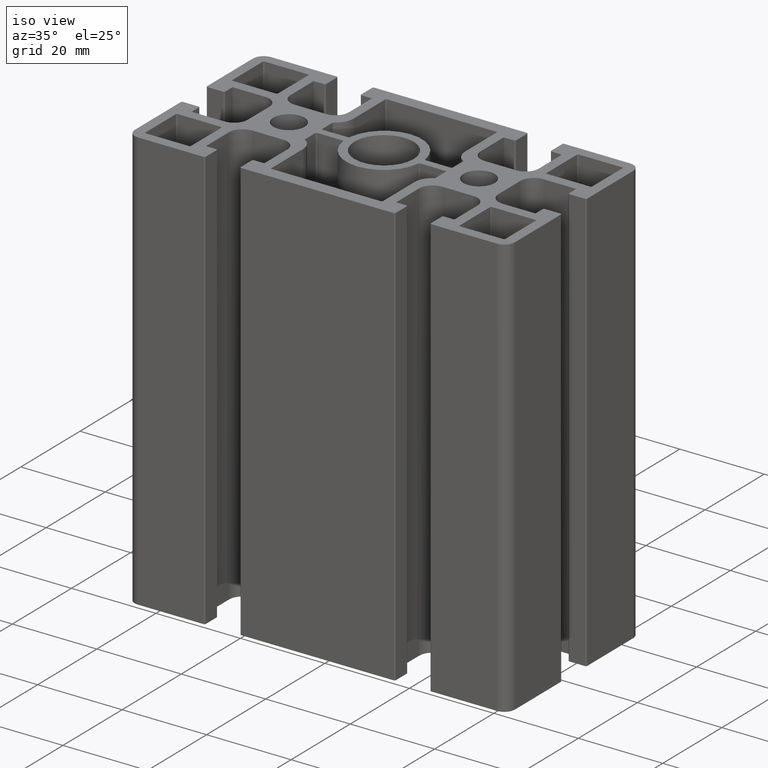
[diagram: clean part render]
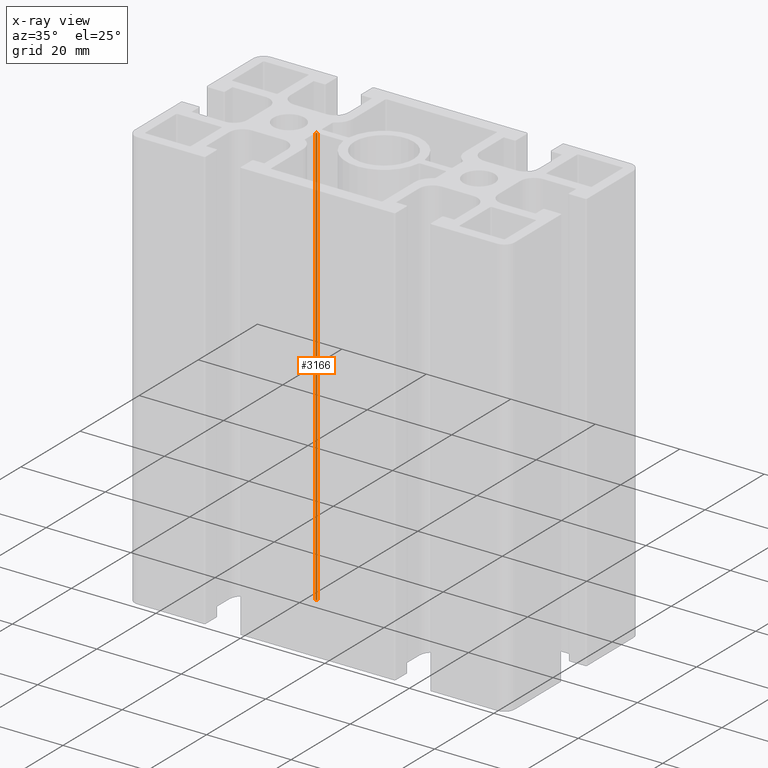
[diagram: x-ray — body ghosted, one internal face saturated and labeled with its STEP entity id]
A machine part, iso view, then the same camera in x-ray: the body is ghosted and one INTERNAL B-rep face — a face not visible from any outside direction — is saturated and labeled: STEP entity #3166.
In plain terms, the highlighted cylindrical surface (edge-blend (fillet) strip) has radius 0.3 mm, axis along (0, 0, 1).
Its self-contained STEP definition (entity closure, byte-faithful):
#140=FACE_OUTER_BOUND('',#305,.T.);
#305=EDGE_LOOP('',(#2173,#2174,#2175,#2176));
#506=LINE('',#4742,#830);
#508=LINE('',#4748,#832);
#830=VECTOR('',#3765,100.);
#832=VECTOR('',#3771,100.);
#1143=CIRCLE('',#3358,0.299999999999998);
#1144=CIRCLE('',#3359,0.299999999999998);
#1321=VERTEX_POINT('',#4739);
#1322=VERTEX_POINT('',#4741);
#1323=VERTEX_POINT('',#4745);
#1324=VERTEX_POINT('',#4747);
#1666=EDGE_CURVE('',#1321,#1322,#506,.T.);
#1668=EDGE_CURVE('',#1323,#1321,#1143,.T.);
#1669=EDGE_CURVE('',#1323,#1324,#508,.T.);
#1670=EDGE_CURVE('',#1322,#1324,#1144,.T.);
#2173=ORIENTED_EDGE('',*,*,#1668,.F.);
#2174=ORIENTED_EDGE('',*,*,#1669,.T.);
#2175=ORIENTED_EDGE('',*,*,#1670,.F.);
#2176=ORIENTED_EDGE('',*,*,#1666,.F.);
#3077=CYLINDRICAL_SURFACE('',#3357,0.299999999999998);
#3166=ADVANCED_FACE('',(#140),#3077,.F.);
#3357=AXIS2_PLACEMENT_3D('',#4744,#3767,#3768);
#3358=AXIS2_PLACEMENT_3D('',#4746,#3769,#3770);
#3359=AXIS2_PLACEMENT_3D('',#4749,#3772,#3773);
#3765=DIRECTION('',(0.,0.,1.));
#3767=DIRECTION('center_axis',(0.,0.,1.));
#3768=DIRECTION('ref_axis',(0.,-1.,0.));
#3769=DIRECTION('center_axis',(0.,0.,1.));
#3770=DIRECTION('ref_axis',(0.,-1.,0.));
#3771=DIRECTION('',(0.,0.,1.));
#3772=DIRECTION('center_axis',(0.,0.,-1.));
#3773=DIRECTION('ref_axis',(0.,-1.,0.));
#4739=CARTESIAN_POINT('',(-15.45,-1.2,0.));
#4741=CARTESIAN_POINT('',(-15.45,-1.2,100.));
#4742=CARTESIAN_POINT('',(-15.45,-1.2,0.));
#4744=CARTESIAN_POINT('Origin',(-15.15,-1.2,0.));
#4745=CARTESIAN_POINT('',(-15.15,-0.9,0.));
#4746=CARTESIAN_POINT('Origin',(-15.15,-1.2,0.));
#4747=CARTESIAN_POINT('',(-15.15,-0.9,100.));
#4748=CARTESIAN_POINT('',(-15.15,-0.9,0.));
#4749=CARTESIAN_POINT('Origin',(-15.15,-1.2,100.));